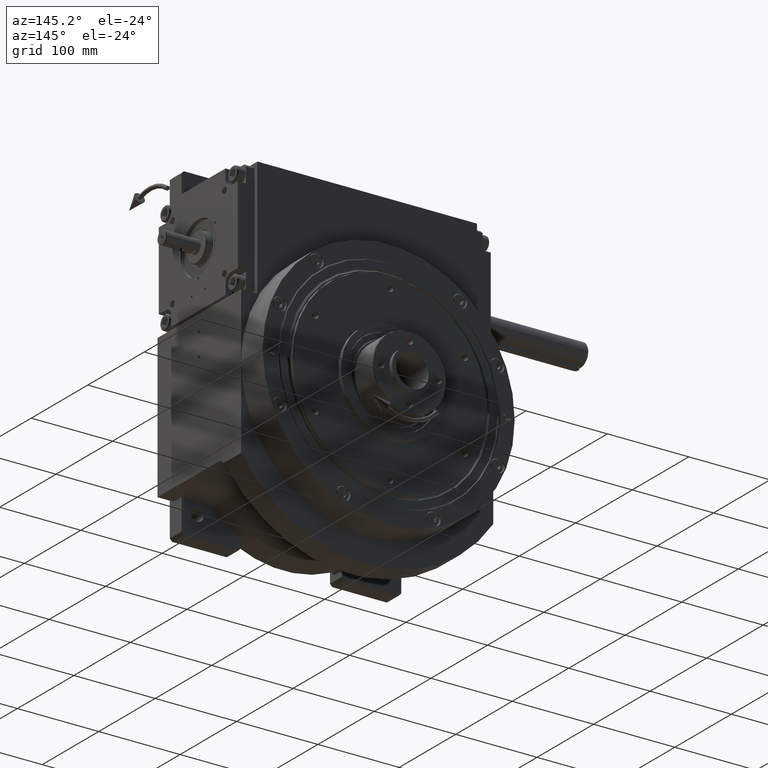
[diagram: clean part render]
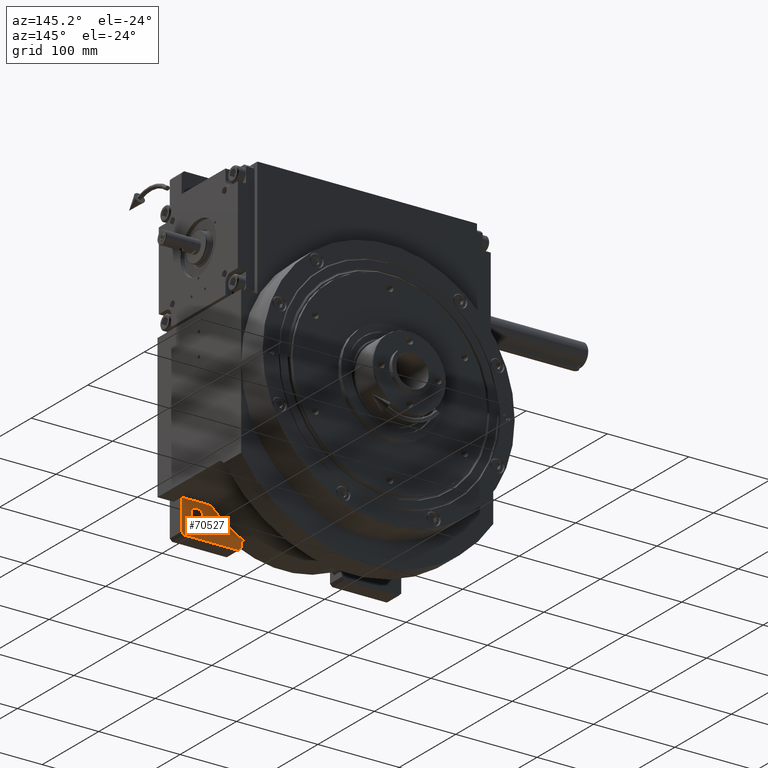
[diagram: same view with one face highlighted and labeled with its STEP entity id]
A machine part, auxiliary view. The second image highlights one B-rep face of the part: STEP entity #70527.
In plain terms, the highlighted planar face has unit normal (0, -1, 0).
Its self-contained STEP definition (entity closure, byte-faithful):
#627 = EDGE_CURVE ( 'NONE', #63005, #36429, #54256, .T. ) ;
#1817 = DIRECTION ( 'NONE',  ( 0.000000000000000000, -1.000000000000000000, 0.000000000000000000 ) ) ;
#2153 = FACE_BOUND ( 'NONE', #24606, .T. ) ;
#2212 = CARTESIAN_POINT ( 'NONE',  ( 62.00000000000000000, -59.00000000000000000, -128.0624847486569990 ) ) ;
#2558 = LINE ( 'NONE', #2212, #47005 ) ;
#2912 = EDGE_CURVE ( 'NONE', #36429, #63005, #58082, .T. ) ;
#3285 = CARTESIAN_POINT ( 'NONE',  ( 1.421085471520199867E-13, -59.00000000000000000, -2.700062395888380201E-13 ) ) ;
#4192 = EDGE_CURVE ( 'NONE', #12702, #48854, #10336, .T. ) ;
#4369 = VECTOR ( 'NONE', #10399, 1000.000000000000000 ) ;
#5211 = LINE ( 'NONE', #5556, #9646 ) ;
#5556 = CARTESIAN_POINT ( 'NONE',  ( 135.0000000000000000, -59.00000000000000000, -134.0000000000000000 ) ) ;
#6319 = VERTEX_POINT ( 'NONE', #8480 ) ;
#6472 = CIRCLE ( 'NONE', #64573, 138.0000000000000853 ) ;
#8074 = LINE ( 'NONE', #24460, #65227 ) ;
#8480 = CARTESIAN_POINT ( 'NONE',  ( 132.0000000000000000, -59.00000000000000000, -137.0000000000000000 ) ) ;
#9339 = DIRECTION ( 'NONE',  ( 0.000000000000000000, 1.000000000000000000, 0.000000000000000000 ) ) ;
#9646 = VECTOR ( 'NONE', #10209, 1000.000000000000114 ) ;
#10209 = DIRECTION ( 'NONE',  ( -0.7071067811865474617, 0.000000000000000000, -0.7071067811865474617 ) ) ;
#10336 = CIRCLE ( 'NONE', #45682, 10.00000000000000000 ) ;
#10399 = DIRECTION ( 'NONE',  ( 1.000000000000000000, 0.000000000000000000, 0.000000000000000000 ) ) ;
#10770 = ORIENTED_EDGE ( 'NONE', *, *, #13479, .T. ) ;
#12702 = VERTEX_POINT ( 'NONE', #59544 ) ;
#13452 = ORIENTED_EDGE ( 'NONE', *, *, #62429, .F. ) ;
#13479 = EDGE_CURVE ( 'NONE', #21346, #6319, #5211, .T. ) ;
#14222 = ORIENTED_EDGE ( 'NONE', *, *, #19988, .F. ) ;
#14876 = LINE ( 'NONE', #37674, #64114 ) ;
#15529 = AXIS2_PLACEMENT_3D ( 'NONE', #37206, #42570, #65008 ) ;
#15972 = DIRECTION ( 'NONE',  ( 0.000000000000000000, 1.000000000000000000, 0.000000000000000000 ) ) ;
#18016 = DIRECTION ( 'NONE',  ( 1.000000000000000000, 0.000000000000000000, 0.000000000000000000 ) ) ;
#18460 = VERTEX_POINT ( 'NONE', #33071 ) ;
#18570 = CARTESIAN_POINT ( 'NONE',  ( 0.000000000000000000, -59.00000000000000000, 0.000000000000000000 ) ) ;
#19804 = EDGE_CURVE ( 'NONE', #39518, #18460, #32127, .T. ) ;
#19988 = EDGE_CURVE ( 'NONE', #21346, #38853, #14876, .T. ) ;
#20381 = CARTESIAN_POINT ( 'NONE',  ( 103.2860106694028133, -59.00000000000000000, -106.0000000000000000 ) ) ;
#20982 = ORIENTED_EDGE ( 'NONE', *, *, #68781, .F. ) ;
#21346 = VERTEX_POINT ( 'NONE', #36209 ) ;
#21354 = CARTESIAN_POINT ( 'NONE',  ( 65.00000000000000000, -59.00000000000000000, -137.0000000000000000 ) ) ;
#22142 = LINE ( 'NONE', #48564, #4369 ) ;
#23093 = ORIENTED_EDGE ( 'NONE', *, *, #28311, .F. ) ;
#23438 = VERTEX_POINT ( 'NONE', #30661 ) ;
#23560 = DIRECTION ( 'NONE',  ( -1.000000000000000000, 0.000000000000000000, 0.000000000000000000 ) ) ;
#24460 = CARTESIAN_POINT ( 'NONE',  ( 65.00000000000000000, -59.00000000000000000, -137.0000000000000000 ) ) ;
#24606 = EDGE_LOOP ( 'NONE', ( #68468, #52270 ) ) ;
#27791 = CARTESIAN_POINT ( 'NONE',  ( 108.5000000000000000, -59.00000000000000000, -111.0000000000000000 ) ) ;
#28311 = EDGE_CURVE ( 'NONE', #23438, #18460, #2558, .T. ) ;
#28774 = EDGE_LOOP ( 'NONE', ( #23093, #53153, #20982, #28869, #32679, #14222, #10770, #13452, #51625 ) ) ;
#28869 = ORIENTED_EDGE ( 'NONE', *, *, #4192, .T. ) ;
#28883 = FACE_OUTER_BOUND ( 'NONE', #28774, .T. ) ;
#29789 = DIRECTION ( 'NONE',  ( 1.000000000000000000, 0.000000000000000000, 0.000000000000000000 ) ) ;
#30009 = DIRECTION ( 'NONE',  ( 0.6978784504689377055, 0.000000000000000000, -0.7162162162162165613 ) ) ;
#30661 = CARTESIAN_POINT ( 'NONE',  ( 62.00000000000000000, -59.00000000000000000, -128.0624847486569990 ) ) ;
#32127 = LINE ( 'NONE', #54597, #66506 ) ;
#32679 = ORIENTED_EDGE ( 'NONE', *, *, #70377, .T. ) ;
#33071 = CARTESIAN_POINT ( 'NONE',  ( 62.00000000000000000, -59.00000000000000000, -134.0000000000000000 ) ) ;
#36209 = CARTESIAN_POINT ( 'NONE',  ( 135.0000000000000000, -59.00000000000000000, -134.0000000000000000 ) ) ;
#36429 = VERTEX_POINT ( 'NONE', #42054 ) ;
#37206 = CARTESIAN_POINT ( 'NONE',  ( 116.0000000000000000, -59.00000000000000000, -111.0000000000000000 ) ) ;
#37674 = CARTESIAN_POINT ( 'NONE',  ( 135.0000000000000000, -59.00000000000000000, -134.0000000000000000 ) ) ;
#37726 = DIRECTION ( 'NONE',  ( 1.000000000000000000, 0.000000000000000000, 0.000000000000000000 ) ) ;
#37844 = DIRECTION ( 'NONE',  ( -0.7071067811865474617, 0.000000000000000000, 0.7071067811865474617 ) ) ;
#38853 = VERTEX_POINT ( 'NONE', #50404 ) ;
#39518 = VERTEX_POINT ( 'NONE', #21354 ) ;
#40821 = CARTESIAN_POINT ( 'NONE',  ( 59.00000000000000000, -59.00000000000000000, -128.0624847486569990 ) ) ;
#41322 = CIRCLE ( 'NONE', #50431, 3.000000000000002665 ) ;
#41650 = DIRECTION ( 'NONE',  ( 0.000000000000000000, 0.000000000000000000, 1.000000000000000000 ) ) ;
#42054 = CARTESIAN_POINT ( 'NONE',  ( 123.5000000000000000, -59.00000000000000000, -111.0000000000000000 ) ) ;
#42570 = DIRECTION ( 'NONE',  ( 0.000000000000000000, 1.000000000000000000, 0.000000000000000000 ) ) ;
#43131 = CARTESIAN_POINT ( 'NONE',  ( 57.74468085106380499, -59.00000000000000000, -125.3377510306004012 ) ) ;
#45136 = DIRECTION ( 'NONE',  ( 0.000000000000000000, -1.000000000000000000, 0.000000000000000000 ) ) ;
#45682 = AXIS2_PLACEMENT_3D ( 'NONE', #20381, #47506, #58938 ) ;
#47005 = VECTOR ( 'NONE', #67483, 1000.000000000000000 ) ;
#47506 = DIRECTION ( 'NONE',  ( 0.000000000000000000, 1.000000000000000000, 0.000000000000000000 ) ) ;
#48564 = CARTESIAN_POINT ( 'NONE',  ( 103.2860106694029980, -59.00000000000000000, -96.00000000000000000 ) ) ;
#48854 = VERTEX_POINT ( 'NONE', #69142 ) ;
#50404 = CARTESIAN_POINT ( 'NONE',  ( 135.0000000000000000, -59.00000000000000000, -96.00000000000000000 ) ) ;
#50431 = AXIS2_PLACEMENT_3D ( 'NONE', #40821, #45136, #18016 ) ;
#50682 = PLANE ( 'NONE',  #57969 ) ;
#51625 = ORIENTED_EDGE ( 'NONE', *, *, #19804, .T. ) ;
#52270 = ORIENTED_EDGE ( 'NONE', *, *, #627, .F. ) ;
#53153 = ORIENTED_EDGE ( 'NONE', *, *, #55032, .T. ) ;
#53775 = CARTESIAN_POINT ( 'NONE',  ( 116.0000000000000000, -59.00000000000000000, -111.0000000000000000 ) ) ;
#54256 = CIRCLE ( 'NONE', #15529, 7.499999999999992895 ) ;
#54597 = CARTESIAN_POINT ( 'NONE',  ( 65.00000000000000000, -59.00000000000000000, -137.0000000000000000 ) ) ;
#55032 = EDGE_CURVE ( 'NONE', #23438, #67549, #41322, .T. ) ;
#55770 = AXIS2_PLACEMENT_3D ( 'NONE', #53775, #15972, #37726 ) ;
#57969 = AXIS2_PLACEMENT_3D ( 'NONE', #18570, #1817, #23560 ) ;
#58082 = CIRCLE ( 'NONE', #55770, 7.499999999999992895 ) ;
#58938 = DIRECTION ( 'NONE',  ( -0.6978784504689486967, 0.000000000000000000, 0.7162162162162061252 ) ) ;
#59544 = CARTESIAN_POINT ( 'NONE',  ( 96.30722616471339848, -59.00000000000000000, -98.83783783783789545 ) ) ;
#62429 = EDGE_CURVE ( 'NONE', #39518, #6319, #8074, .T. ) ;
#63005 = VERTEX_POINT ( 'NONE', #27791 ) ;
#64114 = VECTOR ( 'NONE', #41650, 1000.000000000000000 ) ;
#64573 = AXIS2_PLACEMENT_3D ( 'NONE', #3285, #9339, #30009 ) ;
#65008 = DIRECTION ( 'NONE',  ( -1.000000000000000000, 0.000000000000000000, 0.000000000000000000 ) ) ;
#65227 = VECTOR ( 'NONE', #29789, 1000.000000000000000 ) ;
#66506 = VECTOR ( 'NONE', #37844, 1000.000000000000114 ) ;
#67483 = DIRECTION ( 'NONE',  ( 0.000000000000000000, 0.000000000000000000, -1.000000000000000000 ) ) ;
#67549 = VERTEX_POINT ( 'NONE', #43131 ) ;
#68468 = ORIENTED_EDGE ( 'NONE', *, *, #2912, .F. ) ;
#68781 = EDGE_CURVE ( 'NONE', #12702, #67549, #6472, .T. ) ;
#69142 = CARTESIAN_POINT ( 'NONE',  ( 103.2860106694029980, -59.00000000000000000, -96.00000000000000000 ) ) ;
#70377 = EDGE_CURVE ( 'NONE', #48854, #38853, #22142, .T. ) ;
#70527 = ADVANCED_FACE ( 'NONE', ( #2153, #28883 ), #50682, .F. ) ;